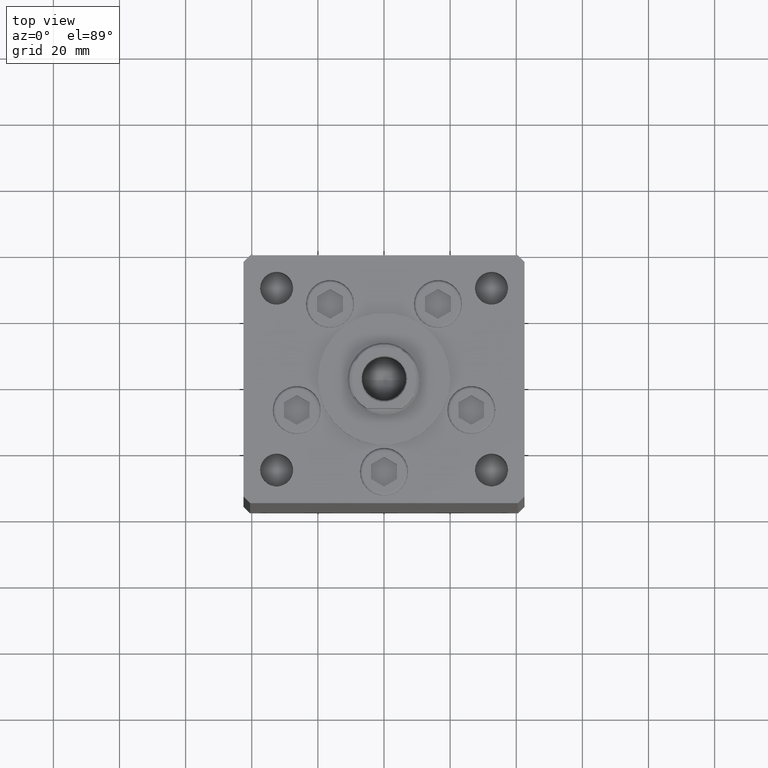
[diagram: clean part render]
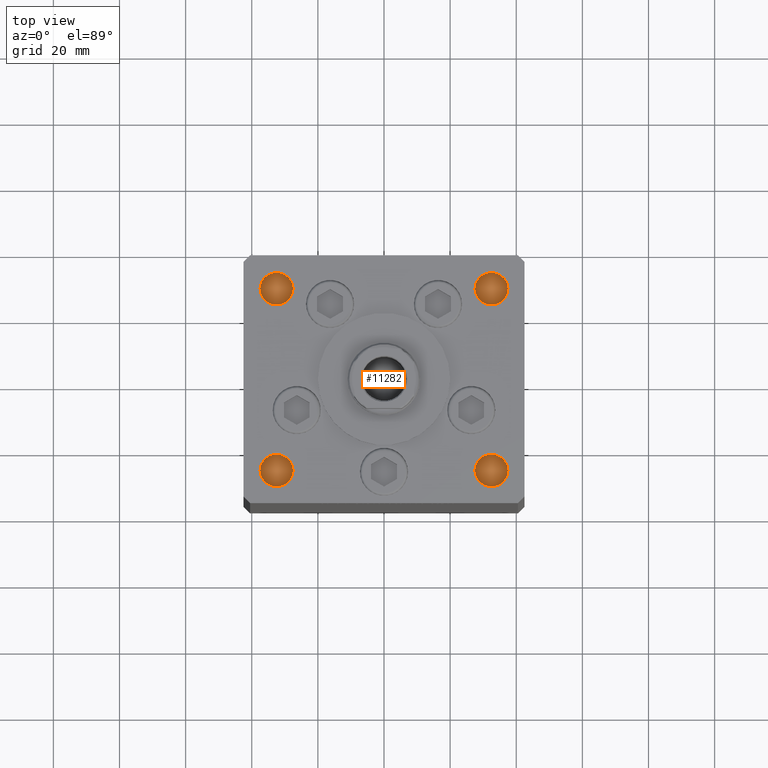
[diagram: same view with one face highlighted and labeled with its STEP entity id]
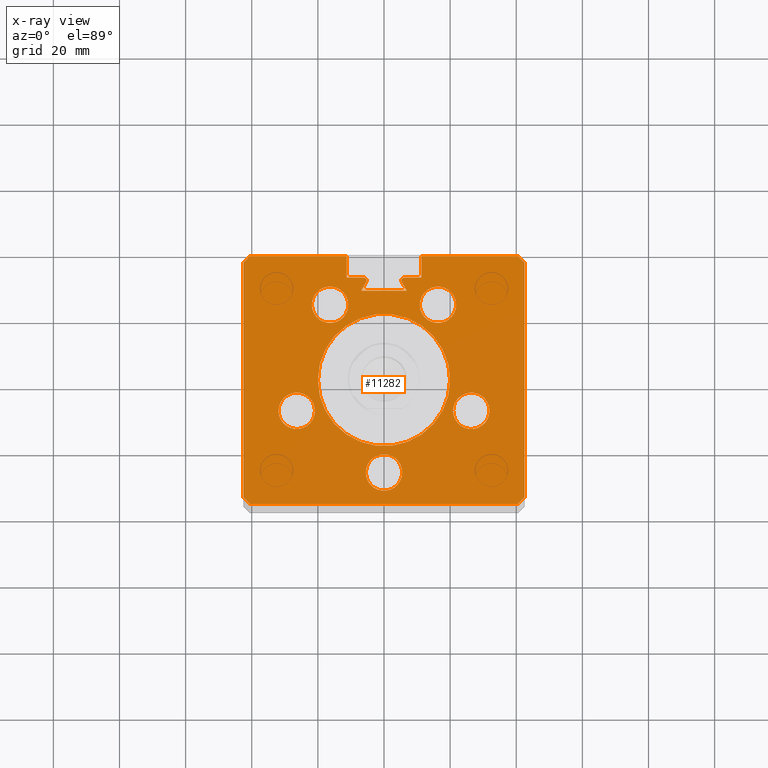
[diagram: x-ray of the same camera — body ghosted, the highlighted face saturated]
A machine part, top view. The second image highlights one B-rep face of the part: STEP entity #11282.
The next image is the same camera in x-ray: the body ghosted, the highlighted face saturated — about 0% of this face is hidden behind the body in this view.
In plain terms, the highlighted planar face has unit normal (0, 0, -1).
Its self-contained STEP definition (entity closure, byte-faithful):
#89 = EDGE_LOOP ( 'NONE', ( #51257, #41298 ) ) ;
#101 = CARTESIAN_POINT ( 'NONE',  ( 21.82291334290542650, 22.75000000000000355, 148.5000000000000000 ) ) ;
#307 = CIRCLE ( 'NONE', #16300, 5.499999999999998224 ) ;
#309 = DIRECTION ( 'NONE',  ( -1.000000000000000000, 0.000000000000000000, 0.000000000000000000 ) ) ;
#320 = DIRECTION ( 'NONE',  ( 1.000000000000000000, 0.000000000000000000, 0.000000000000000000 ) ) ;
#621 = EDGE_CURVE ( 'NONE', #16804, #34928, #28382, .T. ) ;
#667 = VERTEX_POINT ( 'NONE', #17529 ) ;
#772 = CARTESIAN_POINT ( 'NONE',  ( -20.00000000000000000, 0.000000000000000000, 148.5000000000000000 ) ) ;
#1049 = EDGE_CURVE ( 'NONE', #22385, #30639, #51764, .T. ) ;
#1250 = EDGE_LOOP ( 'NONE', ( #24976, #11796 ) ) ;
#1612 = EDGE_CURVE ( 'NONE', #34574, #19273, #35205, .T. ) ;
#1731 = VECTOR ( 'NONE', #34506, 1000.000000000000000 ) ;
#2225 = DIRECTION ( 'NONE',  ( 0.000000000000000000, 0.000000000000000000, 1.000000000000000000 ) ) ;
#2598 = VECTOR ( 'NONE', #320, 1000.000000000000000 ) ;
#2704 = CIRCLE ( 'NONE', #9428, 5.500000000000000000 ) ;
#2976 = VECTOR ( 'NONE', #4863, 1000.000000000000000 ) ;
#3729 = DIRECTION ( 'NONE',  ( 0.5000000000000003331, -0.8660254037844384856, 0.000000000000000000 ) ) ;
#3890 = CIRCLE ( 'NONE', #32510, 5.499999999999998224 ) ;
#3932 = CARTESIAN_POINT ( 'NONE',  ( 0.000000000000000000, 0.000000000000000000, 148.5000000000000000 ) ) ;
#4153 = CARTESIAN_POINT ( 'NONE',  ( 16.32291334290542650, 22.75000000000000355, 148.5000000000000000 ) ) ;
#4277 = VERTEX_POINT ( 'NONE', #101 ) ;
#4561 = CARTESIAN_POINT ( 'NONE',  ( 11.24999999999999289, 37.50000000000000000, 148.5000000000000000 ) ) ;
#4863 = DIRECTION ( 'NONE',  ( 2.931927001650941360E-16, -1.000000000000000000, 0.000000000000000000 ) ) ;
#4893 = EDGE_CURVE ( 'NONE', #28521, #51322, #51283, .T. ) ;
#4901 = DIRECTION ( 'NONE',  ( 0.000000000000000000, 0.000000000000000000, 1.000000000000000000 ) ) ;
#4927 = FACE_BOUND ( 'NONE', #51480, .T. ) ;
#4934 = ORIENTED_EDGE ( 'NONE', *, *, #49907, .T. ) ;
#5137 = CARTESIAN_POINT ( 'NONE',  ( 5.375042956467944499, 29.59999999999899245, 148.5000000000000000 ) ) ;
#5751 = CARTESIAN_POINT ( 'NONE',  ( -11.25000000000000000, 30.99999999999999289, 148.5000000000000000 ) ) ;
#5852 = DIRECTION ( 'NONE',  ( -0.7071067811865474617, -0.7071067811865474617, 0.000000000000000000 ) ) ;
#5878 = VERTEX_POINT ( 'NONE', #44186 ) ;
#5963 = EDGE_LOOP ( 'NONE', ( #29973, #7335 ) ) ;
#6050 = AXIS2_PLACEMENT_3D ( 'NONE', #20388, #52071, #15928 ) ;
#6133 = EDGE_CURVE ( 'NONE', #37941, #22385, #49933, .T. ) ;
#6318 = VECTOR ( 'NONE', #31579, 1000.000000000000114 ) ;
#6340 = CARTESIAN_POINT ( 'NONE',  ( 20.89865316429778019, -9.333333333333326820, 148.5000000000000000 ) ) ;
#6718 = DIRECTION ( 'NONE',  ( 0.000000000000000000, 0.000000000000000000, 1.000000000000000000 ) ) ;
#7332 = DIRECTION ( 'NONE',  ( 1.000000000000000000, 0.000000000000000000, 0.000000000000000000 ) ) ;
#7335 = ORIENTED_EDGE ( 'NONE', *, *, #32137, .F. ) ;
#7337 = VERTEX_POINT ( 'NONE', #22604 ) ;
#7604 = AXIS2_PLACEMENT_3D ( 'NONE', #19509, #31676, #27691 ) ;
#7696 = LINE ( 'NONE', #36450, #2598 ) ;
#7758 = CARTESIAN_POINT ( 'NONE',  ( 3.429011037612589276E-15, -28.00000000000000000, 148.5000000000000000 ) ) ;
#7907 = DIRECTION ( 'NONE',  ( 1.000000000000000000, 0.000000000000000000, 0.000000000000000000 ) ) ;
#8023 = ORIENTED_EDGE ( 'NONE', *, *, #33107, .T. ) ;
#8050 = CARTESIAN_POINT ( 'NONE',  ( -5.499999999999996447, -28.00000000000000000, 148.5000000000000000 ) ) ;
#8313 = DIRECTION ( 'NONE',  ( -1.000000000000000000, 0.000000000000000000, 0.000000000000000000 ) ) ;
#8458 = VERTEX_POINT ( 'NONE', #43397 ) ;
#8759 = CARTESIAN_POINT ( 'NONE',  ( 5.500000000000003553, -28.00000000000000000, 148.5000000000000000 ) ) ;
#8925 = CARTESIAN_POINT ( 'NONE',  ( -31.89865316429777664, -9.333333333333333925, 148.5000000000000000 ) ) ;
#9428 = AXIS2_PLACEMENT_3D ( 'NONE', #34889, #43059, #43326 ) ;
#9974 = DIRECTION ( 'NONE',  ( 0.5000000000000003331, 0.8660254037844384856, 0.000000000000000000 ) ) ;
#10254 = CARTESIAN_POINT ( 'NONE',  ( -42.50000000000000711, 35.50000000000001421, 148.5000000000000000 ) ) ;
#10881 = ORIENTED_EDGE ( 'NONE', *, *, #14291, .F. ) ;
#10904 = CARTESIAN_POINT ( 'NONE',  ( -16.32291334290543361, 22.75000000000000000, 148.5000000000000000 ) ) ;
#11003 = CARTESIAN_POINT ( 'NONE',  ( 6.183333333333999704, 30.99999999999999289, 148.5000000000000000 ) ) ;
#11103 = LINE ( 'NONE', #16106, #24523 ) ;
#11282 = ADVANCED_FACE ( 'NONE', ( #37641, #29213, #24982, #41072, #4927, #17061, #49511 ), #41606, .F. ) ;
#11322 = CARTESIAN_POINT ( 'NONE',  ( -6.183333333333999704, 30.99999999999999289, 148.5000000000000000 ) ) ;
#11637 = CARTESIAN_POINT ( 'NONE',  ( -40.50000000000000000, 37.50000000000000711, 148.5000000000000000 ) ) ;
#11796 = ORIENTED_EDGE ( 'NONE', *, *, #25346, .F. ) ;
#11927 = CIRCLE ( 'NONE', #31313, 5.499999999999998224 ) ;
#12456 = CARTESIAN_POINT ( 'NONE',  ( -5.375042956467944499, 29.59999999999899600, 148.4999999999999716 ) ) ;
#12737 = VERTEX_POINT ( 'NONE', #40891 ) ;
#12776 = CARTESIAN_POINT ( 'NONE',  ( -42.50000000000000711, 35.50000000000001421, 148.5000000000000000 ) ) ;
#12819 = CARTESIAN_POINT ( 'NONE',  ( -26.39865316429777664, -9.333333333333333925, 148.5000000000000000 ) ) ;
#12895 = CIRCLE ( 'NONE', #44111, 0.9333333333340015914 ) ;
#13084 = CARTESIAN_POINT ( 'NONE',  ( 31.89865316429777664, -9.333333333333326820, 148.5000000000000000 ) ) ;
#13369 = ORIENTED_EDGE ( 'NONE', *, *, #27964, .F. ) ;
#13505 = EDGE_CURVE ( 'NONE', #45924, #26456, #45626, .T. ) ;
#13864 = LINE ( 'NONE', #41307, #24465 ) ;
#13865 = LINE ( 'NONE', #37871, #26313 ) ;
#13912 = CARTESIAN_POINT ( 'NONE',  ( 26.39865316429777664, -9.333333333333326820, 148.5000000000000000 ) ) ;
#14291 = EDGE_CURVE ( 'NONE', #26456, #45924, #43992, .T. ) ;
#14657 = EDGE_CURVE ( 'NONE', #667, #49895, #2704, .T. ) ;
#14888 = CARTESIAN_POINT ( 'NONE',  ( -6.183333333333999704, 30.06666666666599141, 148.5000000000000000 ) ) ;
#15246 = LINE ( 'NONE', #19459, #39961 ) ;
#15373 = ORIENTED_EDGE ( 'NONE', *, *, #49564, .T. ) ;
#15394 = DIRECTION ( 'NONE',  ( 1.000000000000000000, 0.000000000000000000, 0.000000000000000000 ) ) ;
#15692 = EDGE_CURVE ( 'NONE', #27453, #45981, #11103, .T. ) ;
#15819 = VECTOR ( 'NONE', #8313, 1000.000000000000000 ) ;
#15863 = DIRECTION ( 'NONE',  ( 1.000000000000000000, 0.000000000000000000, 0.000000000000000000 ) ) ;
#15899 = ORIENTED_EDGE ( 'NONE', *, *, #50898, .T. ) ;
#15928 = DIRECTION ( 'NONE',  ( 1.000000000000000000, 0.000000000000000000, 0.000000000000000000 ) ) ;
#16069 = CARTESIAN_POINT ( 'NONE',  ( 40.50000000000000000, 37.50000000000000711, 148.5000000000000000 ) ) ;
#16106 = CARTESIAN_POINT ( 'NONE',  ( 16.84845819336021577, 9.727461873366683776, 148.5000000000000000 ) ) ;
#16300 = AXIS2_PLACEMENT_3D ( 'NONE', #42844, #22266, #38368 ) ;
#16804 = VERTEX_POINT ( 'NONE', #11322 ) ;
#16900 = ORIENTED_EDGE ( 'NONE', *, *, #46118, .F. ) ;
#16961 = CARTESIAN_POINT ( 'NONE',  ( 11.25000000000000000, 30.99999999999999289, 148.5000000000000000 ) ) ;
#17009 = CARTESIAN_POINT ( 'NONE',  ( -6.183333333333999704, 30.06666666666599141, 148.5000000000000000 ) ) ;
#17061 = FACE_OUTER_BOUND ( 'NONE', #21530, .T. ) ;
#17324 = EDGE_CURVE ( 'NONE', #16804, #28521, #32966, .T. ) ;
#17529 = CARTESIAN_POINT ( 'NONE',  ( -10.82291334290543539, 22.75000000000000000, 148.5000000000000000 ) ) ;
#17553 = DIRECTION ( 'NONE',  ( -2.931927001650941360E-16, -1.000000000000000000, 0.000000000000000000 ) ) ;
#17740 = VERTEX_POINT ( 'NONE', #41099 ) ;
#17756 = EDGE_LOOP ( 'NONE', ( #49893, #10881 ) ) ;
#17943 = AXIS2_PLACEMENT_3D ( 'NONE', #3932, #21494, #20004 ) ;
#18681 = LINE ( 'NONE', #46395, #45899 ) ;
#18843 = CIRCLE ( 'NONE', #25586, 5.500000000000000000 ) ;
#18893 = LINE ( 'NONE', #35519, #6318 ) ;
#19273 = VERTEX_POINT ( 'NONE', #8925 ) ;
#19459 = CARTESIAN_POINT ( 'NONE',  ( -11.25000000000000000, 37.50000000000000000, 148.5000000000000000 ) ) ;
#19509 = CARTESIAN_POINT ( 'NONE',  ( 0.000000000000000000, 0.000000000000000000, 148.5000000000000000 ) ) ;
#19660 = EDGE_CURVE ( 'NONE', #43017, #7337, #13865, .T. ) ;
#20004 = DIRECTION ( 'NONE',  ( 1.000000000000000000, 0.000000000000000000, 0.000000000000000000 ) ) ;
#20232 = DIRECTION ( 'NONE',  ( 1.000000000000000000, 0.000000000000000000, 0.000000000000000000 ) ) ;
#20234 = DIRECTION ( 'NONE',  ( -0.7071067811865500152, -0.7071067811865451302, 0.000000000000000000 ) ) ;
#20388 = CARTESIAN_POINT ( 'NONE',  ( 3.429011037612589276E-15, -28.00000000000000000, 148.5000000000000000 ) ) ;
#20880 = ORIENTED_EDGE ( 'NONE', *, *, #4893, .F. ) ;
#21182 = EDGE_CURVE ( 'NONE', #41052, #31876, #43224, .T. ) ;
#21494 = DIRECTION ( 'NONE',  ( -0.000000000000000000, 0.000000000000000000, 1.000000000000000000 ) ) ;
#21530 = EDGE_LOOP ( 'NONE', ( #28109, #33942, #28371, #4934, #27058, #15899, #8023, #13369, #28162, #28348, #43304, #32013, #36341, #16900, #35690, #39658, #15373, #20880, #27799 ) ) ;
#21822 = DIRECTION ( 'NONE',  ( 1.000000000000000000, 0.000000000000000000, 0.000000000000000000 ) ) ;
#21942 = CARTESIAN_POINT ( 'NONE',  ( 42.49999999999998579, -35.50000000000000711, 148.5000000000000000 ) ) ;
#21961 = ORIENTED_EDGE ( 'NONE', *, *, #27044, .F. ) ;
#22266 = DIRECTION ( 'NONE',  ( 0.000000000000000000, 0.000000000000000000, 1.000000000000000000 ) ) ;
#22385 = VERTEX_POINT ( 'NONE', #16961 ) ;
#22556 = VERTEX_POINT ( 'NONE', #41406 ) ;
#22604 = CARTESIAN_POINT ( 'NONE',  ( 42.49999999999998579, -35.50000000000000711, 148.5000000000000000 ) ) ;
#23780 = CARTESIAN_POINT ( 'NONE',  ( 6.183333333333999704, 30.06666666666599141, 148.5000000000000000 ) ) ;
#24301 = EDGE_CURVE ( 'NONE', #49895, #667, #18843, .T. ) ;
#24465 = VECTOR ( 'NONE', #37360, 1000.000000000000000 ) ;
#24523 = VECTOR ( 'NONE', #3729, 1000.000000000000114 ) ;
#24576 = VERTEX_POINT ( 'NONE', #28811 ) ;
#24976 = ORIENTED_EDGE ( 'NONE', *, *, #45651, .F. ) ;
#24982 = FACE_BOUND ( 'NONE', #29447, .T. ) ;
#25044 = VERTEX_POINT ( 'NONE', #33691 ) ;
#25287 = EDGE_CURVE ( 'NONE', #46064, #8458, #15246, .T. ) ;
#25346 = EDGE_CURVE ( 'NONE', #12737, #4277, #27326, .T. ) ;
#25381 = LINE ( 'NONE', #21942, #36967 ) ;
#25586 = AXIS2_PLACEMENT_3D ( 'NONE', #10904, #2225, #15394 ) ;
#25898 = CARTESIAN_POINT ( 'NONE',  ( 0.000000000000000000, 26.99999999999986855, 148.5000000000000000 ) ) ;
#26254 = CARTESIAN_POINT ( 'NONE',  ( 20.00000000000000000, 2.449293598294706513E-15, 148.5000000000000000 ) ) ;
#26313 = VECTOR ( 'NONE', #17553, 1000.000000000000000 ) ;
#26456 = VERTEX_POINT ( 'NONE', #8050 ) ;
#26511 = DIRECTION ( 'NONE',  ( 1.000000000000000000, 0.000000000000000000, 0.000000000000000000 ) ) ;
#27044 = EDGE_CURVE ( 'NONE', #31876, #41052, #3890, .T. ) ;
#27058 = ORIENTED_EDGE ( 'NONE', *, *, #50956, .T. ) ;
#27326 = CIRCLE ( 'NONE', #37416, 5.499999999999998224 ) ;
#27453 = VERTEX_POINT ( 'NONE', #5137 ) ;
#27691 = DIRECTION ( 'NONE',  ( 1.000000000000000000, 0.000000000000000000, 0.000000000000000000 ) ) ;
#27797 = VECTOR ( 'NONE', #43527, 1000.000000000000114 ) ;
#27799 = ORIENTED_EDGE ( 'NONE', *, *, #17324, .F. ) ;
#27964 = EDGE_CURVE ( 'NONE', #7337, #17740, #25381, .T. ) ;
#27969 = CARTESIAN_POINT ( 'NONE',  ( -26.39865316429777664, -9.333333333333333925, 148.5000000000000000 ) ) ;
#28023 = EDGE_CURVE ( 'NONE', #45981, #5878, #37774, .T. ) ;
#28109 = ORIENTED_EDGE ( 'NONE', *, *, #621, .T. ) ;
#28162 = ORIENTED_EDGE ( 'NONE', *, *, #19660, .F. ) ;
#28348 = ORIENTED_EDGE ( 'NONE', *, *, #30998, .F. ) ;
#28371 = ORIENTED_EDGE ( 'NONE', *, *, #25287, .F. ) ;
#28382 = LINE ( 'NONE', #44482, #15819 ) ;
#28521 = VERTEX_POINT ( 'NONE', #31456 ) ;
#28653 = ORIENTED_EDGE ( 'NONE', *, *, #14657, .F. ) ;
#28667 = LINE ( 'NONE', #36598, #35776 ) ;
#28811 = CARTESIAN_POINT ( 'NONE',  ( -40.49999999999998579, -37.50000000000000711, 148.5000000000000000 ) ) ;
#29213 = FACE_BOUND ( 'NONE', #17756, .T. ) ;
#29447 = EDGE_LOOP ( 'NONE', ( #37111, #21961 ) ) ;
#29660 = AXIS2_PLACEMENT_3D ( 'NONE', #7758, #6718, #42865 ) ;
#29682 = DIRECTION ( 'NONE',  ( 1.000000000000000000, 0.000000000000000000, 0.000000000000000000 ) ) ;
#29973 = ORIENTED_EDGE ( 'NONE', *, *, #46632, .F. ) ;
#30639 = VERTEX_POINT ( 'NONE', #11003 ) ;
#30998 = EDGE_CURVE ( 'NONE', #22556, #43017, #47474, .T. ) ;
#31116 = DIRECTION ( 'NONE',  ( 0.000000000000000000, 0.000000000000000000, 1.000000000000000000 ) ) ;
#31313 = AXIS2_PLACEMENT_3D ( 'NONE', #27969, #44075, #7907 ) ;
#31456 = CARTESIAN_POINT ( 'NONE',  ( -5.249999999999997335, 30.06666666666599141, 148.5000000000000000 ) ) ;
#31579 = DIRECTION ( 'NONE',  ( 0.7071067811865474617, -0.7071067811865474617, 0.000000000000000000 ) ) ;
#31653 = DIRECTION ( 'NONE',  ( 1.000000000000000000, 0.000000000000000000, 0.000000000000000000 ) ) ;
#31676 = DIRECTION ( 'NONE',  ( -0.000000000000000000, 0.000000000000000000, 1.000000000000000000 ) ) ;
#31876 = VERTEX_POINT ( 'NONE', #6340 ) ;
#32013 = ORIENTED_EDGE ( 'NONE', *, *, #6133, .T. ) ;
#32121 = AXIS2_PLACEMENT_3D ( 'NONE', #45296, #45558, #41332 ) ;
#32137 = EDGE_CURVE ( 'NONE', #39723, #35694, #35400, .T. ) ;
#32510 = AXIS2_PLACEMENT_3D ( 'NONE', #51949, #31116, #31653 ) ;
#32629 = DIRECTION ( 'NONE',  ( 1.000000000000000000, 0.000000000000000000, 0.000000000000000000 ) ) ;
#32966 = CIRCLE ( 'NONE', #44761, 0.9333333333340015914 ) ;
#33038 = CARTESIAN_POINT ( 'NONE',  ( 6.876153656360465938, 26.99999999999986855, 148.5000000000000000 ) ) ;
#33107 = EDGE_CURVE ( 'NONE', #24576, #17740, #42428, .T. ) ;
#33116 = DIRECTION ( 'NONE',  ( 0.000000000000000000, 0.000000000000000000, -1.000000000000000000 ) ) ;
#33435 = EDGE_CURVE ( 'NONE', #34928, #8458, #13864, .T. ) ;
#33691 = CARTESIAN_POINT ( 'NONE',  ( -42.49999999999998579, -35.50000000000000711, 148.5000000000000000 ) ) ;
#33942 = ORIENTED_EDGE ( 'NONE', *, *, #33435, .T. ) ;
#34237 = DIRECTION ( 'NONE',  ( 0.000000000000000000, 0.000000000000000000, 1.000000000000000000 ) ) ;
#34506 = DIRECTION ( 'NONE',  ( 1.000000000000000000, 0.000000000000000000, 0.000000000000000000 ) ) ;
#34574 = VERTEX_POINT ( 'NONE', #40657 ) ;
#34889 = CARTESIAN_POINT ( 'NONE',  ( -16.32291334290543361, 22.75000000000000000, 148.5000000000000000 ) ) ;
#34928 = VERTEX_POINT ( 'NONE', #5751 ) ;
#35205 = CIRCLE ( 'NONE', #36885, 5.499999999999998224 ) ;
#35272 = AXIS2_PLACEMENT_3D ( 'NONE', #14888, #51046, #26511 ) ;
#35386 = DIRECTION ( 'NONE',  ( 0.000000000000000000, 0.000000000000000000, -1.000000000000000000 ) ) ;
#35400 = CIRCLE ( 'NONE', #7604, 20.00000000000000000 ) ;
#35519 = CARTESIAN_POINT ( 'NONE',  ( -42.49999999999998579, -35.50000000000000711, 148.5000000000000000 ) ) ;
#35690 = ORIENTED_EDGE ( 'NONE', *, *, #15692, .T. ) ;
#35694 = VERTEX_POINT ( 'NONE', #772 ) ;
#35776 = VECTOR ( 'NONE', #20234, 1000.000000000000114 ) ;
#36184 = CARTESIAN_POINT ( 'NONE',  ( 11.25000000000000000, 0.000000000000000000, 148.5000000000000000 ) ) ;
#36341 = ORIENTED_EDGE ( 'NONE', *, *, #1049, .T. ) ;
#36450 = CARTESIAN_POINT ( 'NONE',  ( -11.25000000000000000, 37.50000000000000000, 148.5000000000000000 ) ) ;
#36598 = CARTESIAN_POINT ( 'NONE',  ( -40.50000000000000000, 37.50000000000000711, 148.5000000000000000 ) ) ;
#36885 = AXIS2_PLACEMENT_3D ( 'NONE', #12819, #4901, #32629 ) ;
#36967 = VECTOR ( 'NONE', #5852, 1000.000000000000114 ) ;
#37111 = ORIENTED_EDGE ( 'NONE', *, *, #21182, .F. ) ;
#37360 = DIRECTION ( 'NONE',  ( 0.000000000000000000, 1.000000000000000000, 0.000000000000000000 ) ) ;
#37416 = AXIS2_PLACEMENT_3D ( 'NONE', #4153, #44517, #20232 ) ;
#37641 = FACE_BOUND ( 'NONE', #89, .T. ) ;
#37774 = LINE ( 'NONE', #25898, #44557 ) ;
#37871 = CARTESIAN_POINT ( 'NONE',  ( 42.50000000000000711, 35.50000000000001421, 148.5000000000000000 ) ) ;
#37941 = VERTEX_POINT ( 'NONE', #4561 ) ;
#38368 = DIRECTION ( 'NONE',  ( 1.000000000000000000, 0.000000000000000000, 0.000000000000000000 ) ) ;
#39353 = EDGE_CURVE ( 'NONE', #37941, #22556, #7696, .T. ) ;
#39658 = ORIENTED_EDGE ( 'NONE', *, *, #28023, .T. ) ;
#39723 = VERTEX_POINT ( 'NONE', #26254 ) ;
#39961 = VECTOR ( 'NONE', #7332, 1000.000000000000000 ) ;
#40245 = LINE ( 'NONE', #12776, #2976 ) ;
#40548 = EDGE_CURVE ( 'NONE', #19273, #34574, #11927, .T. ) ;
#40657 = CARTESIAN_POINT ( 'NONE',  ( -20.89865316429778019, -9.333333333333333925, 148.5000000000000000 ) ) ;
#40891 = CARTESIAN_POINT ( 'NONE',  ( 10.82291334290543183, 22.75000000000000355, 148.5000000000000000 ) ) ;
#41052 = VERTEX_POINT ( 'NONE', #13084 ) ;
#41072 = FACE_BOUND ( 'NONE', #1250, .T. ) ;
#41099 = CARTESIAN_POINT ( 'NONE',  ( 40.49999999999998579, -37.50000000000000711, 148.5000000000000000 ) ) ;
#41298 = ORIENTED_EDGE ( 'NONE', *, *, #40548, .F. ) ;
#41307 = CARTESIAN_POINT ( 'NONE',  ( -11.25000000000000000, 0.000000000000000000, 148.5000000000000000 ) ) ;
#41332 = DIRECTION ( 'NONE',  ( -1.000000000000000000, 0.000000000000000000, -0.000000000000000000 ) ) ;
#41406 = CARTESIAN_POINT ( 'NONE',  ( 40.50000000000000000, 37.50000000000000711, 148.5000000000000000 ) ) ;
#41606 = PLANE ( 'NONE',  #32121 ) ;
#42428 = LINE ( 'NONE', #51125, #1731 ) ;
#42844 = CARTESIAN_POINT ( 'NONE',  ( 16.32291334290542650, 22.75000000000000355, 148.5000000000000000 ) ) ;
#42865 = DIRECTION ( 'NONE',  ( 1.000000000000000000, 0.000000000000000000, 0.000000000000000000 ) ) ;
#43017 = VERTEX_POINT ( 'NONE', #49857 ) ;
#43059 = DIRECTION ( 'NONE',  ( 0.000000000000000000, 0.000000000000000000, 1.000000000000000000 ) ) ;
#43224 = CIRCLE ( 'NONE', #49947, 5.499999999999998224 ) ;
#43304 = ORIENTED_EDGE ( 'NONE', *, *, #39353, .F. ) ;
#43326 = DIRECTION ( 'NONE',  ( 1.000000000000000000, 0.000000000000000000, 0.000000000000000000 ) ) ;
#43397 = CARTESIAN_POINT ( 'NONE',  ( -11.25000000000000000, 37.50000000000000000, 148.5000000000000000 ) ) ;
#43527 = DIRECTION ( 'NONE',  ( 0.7071067811865500152, -0.7071067811865451302, 0.000000000000000000 ) ) ;
#43992 = CIRCLE ( 'NONE', #29660, 5.500000000000000000 ) ;
#44075 = DIRECTION ( 'NONE',  ( 0.000000000000000000, 0.000000000000000000, 1.000000000000000000 ) ) ;
#44111 = AXIS2_PLACEMENT_3D ( 'NONE', #23780, #35386, #15863 ) ;
#44186 = CARTESIAN_POINT ( 'NONE',  ( -6.876153656360465938, 26.99999999999986855, 148.5000000000000000 ) ) ;
#44482 = CARTESIAN_POINT ( 'NONE',  ( 0.000000000000000000, 30.99999999999999289, 148.5000000000000000 ) ) ;
#44517 = DIRECTION ( 'NONE',  ( 0.000000000000000000, 0.000000000000000000, 1.000000000000000000 ) ) ;
#44557 = VECTOR ( 'NONE', #45437, 1000.000000000000000 ) ;
#44690 = ORIENTED_EDGE ( 'NONE', *, *, #24301, .F. ) ;
#44761 = AXIS2_PLACEMENT_3D ( 'NONE', #17009, #33116, #29682 ) ;
#45034 = CARTESIAN_POINT ( 'NONE',  ( -21.82291334290543361, 22.75000000000000000, 148.5000000000000000 ) ) ;
#45296 = CARTESIAN_POINT ( 'NONE',  ( 0.000000000000000000, 0.000000000000000000, 148.5000000000000000 ) ) ;
#45437 = DIRECTION ( 'NONE',  ( -1.000000000000000000, 0.000000000000000000, 0.000000000000000000 ) ) ;
#45558 = DIRECTION ( 'NONE',  ( 0.000000000000000000, 0.000000000000000000, -1.000000000000000000 ) ) ;
#45626 = CIRCLE ( 'NONE', #6050, 5.500000000000000000 ) ;
#45651 = EDGE_CURVE ( 'NONE', #4277, #12737, #307, .T. ) ;
#45899 = VECTOR ( 'NONE', #9974, 1000.000000000000114 ) ;
#45924 = VERTEX_POINT ( 'NONE', #8759 ) ;
#45981 = VERTEX_POINT ( 'NONE', #33038 ) ;
#46064 = VERTEX_POINT ( 'NONE', #11637 ) ;
#46118 = EDGE_CURVE ( 'NONE', #27453, #30639, #12895, .T. ) ;
#46395 = CARTESIAN_POINT ( 'NONE',  ( -16.84845819336021577, 9.727461873366683776, 148.5000000000000000 ) ) ;
#46620 = CIRCLE ( 'NONE', #17943, 20.00000000000000000 ) ;
#46632 = EDGE_CURVE ( 'NONE', #35694, #39723, #46620, .T. ) ;
#47474 = LINE ( 'NONE', #16069, #27797 ) ;
#47536 = CARTESIAN_POINT ( 'NONE',  ( 0.000000000000000000, 30.99999999999999289, 148.5000000000000000 ) ) ;
#47543 = DIRECTION ( 'NONE',  ( -0.000000000000000000, -1.000000000000000000, 0.000000000000000000 ) ) ;
#49511 = FACE_BOUND ( 'NONE', #5963, .T. ) ;
#49564 = EDGE_CURVE ( 'NONE', #5878, #51322, #18681, .T. ) ;
#49857 = CARTESIAN_POINT ( 'NONE',  ( 42.50000000000000711, 35.50000000000001421, 148.5000000000000000 ) ) ;
#49893 = ORIENTED_EDGE ( 'NONE', *, *, #13505, .F. ) ;
#49895 = VERTEX_POINT ( 'NONE', #45034 ) ;
#49907 = EDGE_CURVE ( 'NONE', #46064, #50567, #28667, .T. ) ;
#49933 = LINE ( 'NONE', #36184, #51363 ) ;
#49947 = AXIS2_PLACEMENT_3D ( 'NONE', #13912, #34237, #21822 ) ;
#50343 = VECTOR ( 'NONE', #309, 1000.000000000000000 ) ;
#50567 = VERTEX_POINT ( 'NONE', #10254 ) ;
#50898 = EDGE_CURVE ( 'NONE', #25044, #24576, #18893, .T. ) ;
#50956 = EDGE_CURVE ( 'NONE', #50567, #25044, #40245, .T. ) ;
#51046 = DIRECTION ( 'NONE',  ( 0.000000000000000000, 0.000000000000000000, -1.000000000000000000 ) ) ;
#51125 = CARTESIAN_POINT ( 'NONE',  ( -40.49999999999998579, -37.50000000000000711, 148.5000000000000000 ) ) ;
#51257 = ORIENTED_EDGE ( 'NONE', *, *, #1612, .F. ) ;
#51283 = CIRCLE ( 'NONE', #35272, 0.9333333333340015914 ) ;
#51322 = VERTEX_POINT ( 'NONE', #12456 ) ;
#51363 = VECTOR ( 'NONE', #47543, 1000.000000000000000 ) ;
#51480 = EDGE_LOOP ( 'NONE', ( #28653, #44690 ) ) ;
#51764 = LINE ( 'NONE', #47536, #50343 ) ;
#51949 = CARTESIAN_POINT ( 'NONE',  ( 26.39865316429777664, -9.333333333333326820, 148.5000000000000000 ) ) ;
#52071 = DIRECTION ( 'NONE',  ( 0.000000000000000000, 0.000000000000000000, 1.000000000000000000 ) ) ;